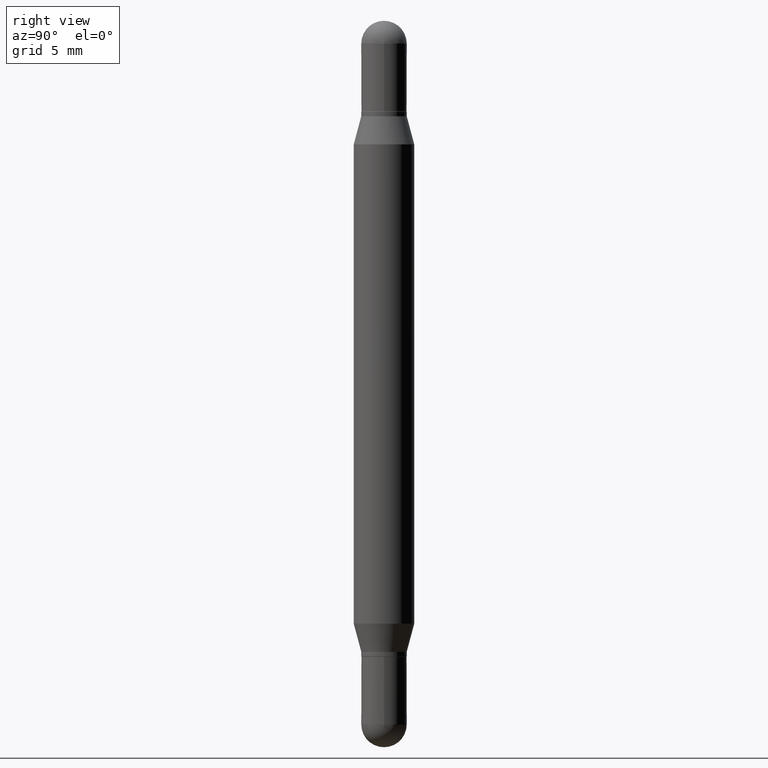
[diagram: clean part render]
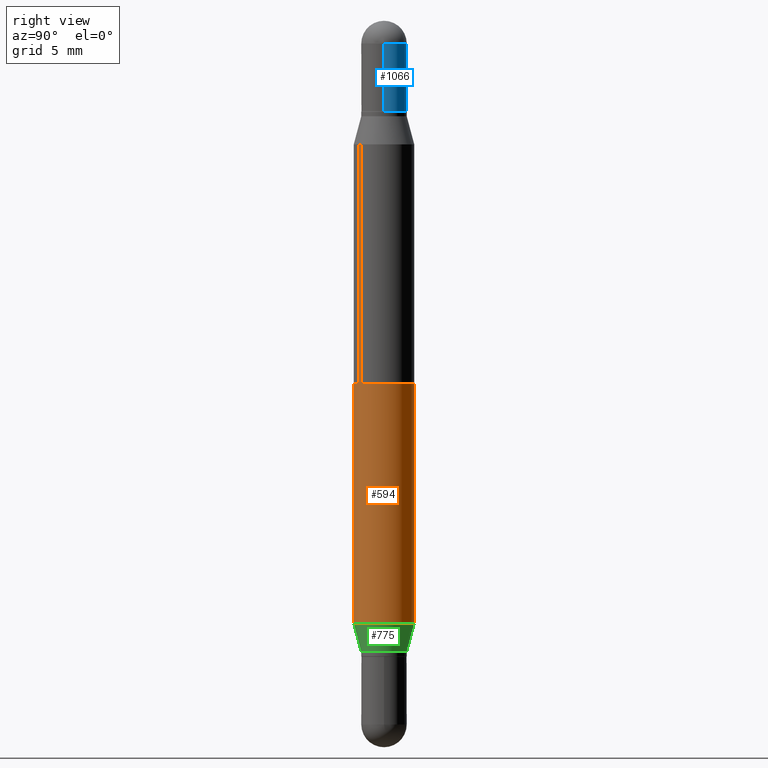
[diagram: same view with three faces highlighted in distinct colors, each labeled with its STEP entity id]
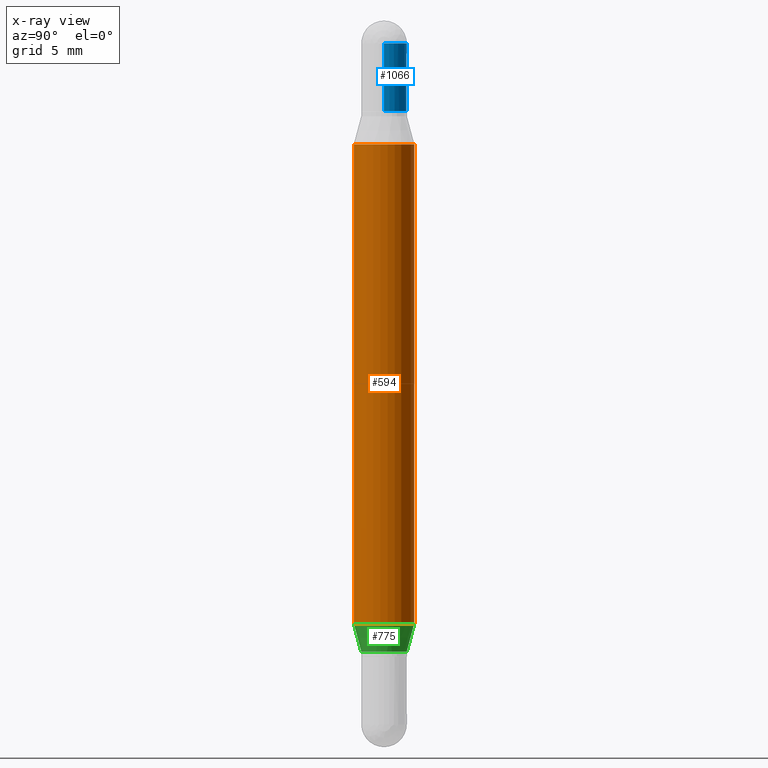
[diagram: x-ray of the same camera — body ghosted, the three highlighted faces saturated]
A machine part, right view with three faces highlighted in distinct colors.
The next image is the same camera in x-ray (body ghosted, the three faces saturated) — at least one of them is partly hidden behind the body in this view.
Their STEP definitions:

[orange] entity #594 — the highlighted cylindrical surface (edge-blend (fillet) strip) has radius 1.5875 mm, axis along (-0, -0, -1).
#9 = VECTOR ( 'NONE', #903, 39.37007874015748143 ) ;
#13 = EDGE_CURVE ( 'NONE', #1001, #980, #545, .T. ) ;
#32 = VERTEX_POINT ( 'NONE', #138 ) ;
#33 = DIRECTION ( 'NONE',  ( 2.445489716498267051E-29, 3.479644411736372261E-15, 1.000000000000000000 ) ) ;
#37 = DIRECTION ( 'NONE',  ( -2.445489716498267051E-29, 3.491451394084601576E-15, 1.000000000000000000 ) ) ;
#47 = LINE ( 'NONE', #373, #9 ) ;
#70 = LINE ( 'NONE', #159, #1105 ) ;
#76 = DIRECTION ( 'NONE',  ( -2.445489716498267051E-29, -3.479644411736372655E-15, -1.000000000000000000 ) ) ;
#91 = CIRCLE ( 'NONE', #600, 0.06250000000000000000 ) ;
#138 = CARTESIAN_POINT ( 'NONE',  ( 4.287811248607510938E-16, 0.06249999999999910488, -0.2552199925980757067 ) ) ;
#159 = CARTESIAN_POINT ( 'NONE',  ( 4.287811248607206733E-16, 0.06249999999999477501, -1.500000000000000666 ) ) ;
#216 = CARTESIAN_POINT ( 'NONE',  ( -4.364351673553611504E-16, -0.06250000000000434375, -1.244780007401924626 ) ) ;
#234 = CYLINDRICAL_SURFACE ( 'NONE', #702, 0.06250000000000000000 ) ;
#239 = DIRECTION ( 'NONE',  ( -2.445489716498267051E-29, -3.479644411736372261E-15, -1.000000000000000000 ) ) ;
#305 = EDGE_LOOP ( 'NONE', ( #463, #438, #797, #853 ) ) ;
#373 = CARTESIAN_POINT ( 'NONE',  ( -4.364351673553916201E-16, -0.06250000000000521805, -1.500000000000000222 ) ) ;
#378 = DIRECTION ( 'NONE',  ( -6.982962677686265922E-15, -1.000000000000000000, 3.278217592397115862E-15 ) ) ;
#390 = CARTESIAN_POINT ( 'NONE',  ( -4.364351673553612490E-16, -0.06250000000000090206, -0.2552199925980753181 ) ) ;
#397 = CARTESIAN_POINT ( 'NONE',  ( 3.044096707404043958E-29, -4.346088892172092005E-15, -1.244780007401924848 ) ) ;
#416 = CARTESIAN_POINT ( 'NONE',  ( 0.000000000000000000, -5.228321854365732350E-15, -1.500000000000000444 ) ) ;
#438 = ORIENTED_EDGE ( 'NONE', *, *, #1060, .F. ) ;
#463 = ORIENTED_EDGE ( 'NONE', *, *, #627, .F. ) ;
#474 = CARTESIAN_POINT ( 'NONE',  ( 4.287811248607390144E-16, 0.06249999999999565625, -1.244780007401925070 ) ) ;
#545 = CIRCLE ( 'NONE', #976, 0.06250000000000000000 ) ;
#583 = DIRECTION ( 'NONE',  ( -6.982962677686265922E-15, -1.000000000000000000, 4.370956789862821150E-15 ) ) ;
#594 = ADVANCED_FACE ( 'NONE', ( #1032 ), #234, .T. ) ;
#600 = AXIS2_PLACEMENT_3D ( 'NONE', #804, #33, #378 ) ;
#627 = EDGE_CURVE ( 'NONE', #32, #980, #70, .T. ) ;
#702 = AXIS2_PLACEMENT_3D ( 'NONE', #416, #239, #583 ) ;
#718 = DIRECTION ( 'NONE',  ( -6.982962677686265922E-15, -1.000000000000000000, 4.370956789862821150E-15 ) ) ;
#797 = ORIENTED_EDGE ( 'NONE', *, *, #993, .T. ) ;
#804 = CARTESIAN_POINT ( 'NONE',  ( 3.044096707404043958E-29, -8.969300577684643069E-16, -0.2552199925980755402 ) ) ;
#853 = ORIENTED_EDGE ( 'NONE', *, *, #13, .T. ) ;
#903 = DIRECTION ( 'NONE',  ( -2.445489716498267051E-29, -3.479644411736372655E-15, -1.000000000000000000 ) ) ;
#968 = VERTEX_POINT ( 'NONE', #390 ) ;
#976 = AXIS2_PLACEMENT_3D ( 'NONE', #397, #37, #718 ) ;
#980 = VERTEX_POINT ( 'NONE', #474 ) ;
#993 = EDGE_CURVE ( 'NONE', #968, #1001, #47, .T. ) ;
#1001 = VERTEX_POINT ( 'NONE', #216 ) ;
#1032 = FACE_OUTER_BOUND ( 'NONE', #305, .T. ) ;
#1060 = EDGE_CURVE ( 'NONE', #968, #32, #91, .T. ) ;
#1105 = VECTOR ( 'NONE', #76, 39.37007874015748143 ) ;

[blue] entity #1066 — the highlighted cylindrical surface (edge-blend (fillet) strip) has radius 1.1913 mm, axis along (-0, -0, -1).
#2 = AXIS2_PLACEMENT_3D ( 'NONE', #637, #552, #895 ) ;
#12 = ORIENTED_EDGE ( 'NONE', *, *, #937, .F. ) ;
#77 = EDGE_CURVE ( 'NONE', #1110, #490, #1101, .T. ) ;
#80 = VERTEX_POINT ( 'NONE', #235 ) ;
#101 = EDGE_CURVE ( 'NONE', #194, #1110, #1007, .T. ) ;
#108 = CIRCLE ( 'NONE', #559, 0.04689999999999999725 ) ;
#116 = CARTESIAN_POINT ( 'NONE',  ( 3.217573560955207797E-16, 0.04689999999999990010, -0.04690000000000069114 ) ) ;
#131 = DIRECTION ( 'NONE',  ( 2.445468806185136597E-29, 3.479614466977828254E-15, 1.000000000000000000 ) ) ;
#132 = AXIS2_PLACEMENT_3D ( 'NONE', #507, #848, #1012 ) ;
#136 = DIRECTION ( 'NONE',  ( 1.000000000000000000, -6.982962677686266711E-15, 0.000000000000000000 ) ) ;
#145 = CIRCLE ( 'NONE', #132, 0.04689999999999999725 ) ;
#154 = DIRECTION ( 'NONE',  ( -2.445468806185136877E-29, -3.479614466977828648E-15, -1.000000000000000000 ) ) ;
#161 = EDGE_CURVE ( 'NONE', #194, #324, #145, .T. ) ;
#194 = VERTEX_POINT ( 'NONE', #877 ) ;
#212 = CARTESIAN_POINT ( 'NONE',  ( 3.553510722267622201E-29, -1.720940724002502970E-16, -0.04690000000000053154 ) ) ;
#218 = ORIENTED_EDGE ( 'NONE', *, *, #77, .T. ) ;
#235 = CARTESIAN_POINT ( 'NONE',  ( -0.04689999999999999725, -9.408370971656128076E-17, -0.04690000000000053154 ) ) ;
#269 = ORIENTED_EDGE ( 'NONE', *, *, #101, .T. ) ;
#290 = LINE ( 'NONE', #983, #584 ) ;
#324 = VERTEX_POINT ( 'NONE', #116 ) ;
#343 = DIRECTION ( 'NONE',  ( 1.000000000000000000, -6.982962677686266711E-15, 0.000000000000000000 ) ) ;
#490 = VERTEX_POINT ( 'NONE', #812 ) ;
#507 = CARTESIAN_POINT ( 'NONE',  ( 3.553510722267622201E-29, -1.720940724002502970E-16, -0.04690000000000053154 ) ) ;
#513 = CARTESIAN_POINT ( 'NONE',  ( 0.04689999999999999725, -5.555822803949218252E-15, -1.500000000000000444 ) ) ;
#547 = DIRECTION ( 'NONE',  ( -2.445468806185136877E-29, -3.479614466977828648E-15, -1.000000000000000000 ) ) ;
#552 = DIRECTION ( 'NONE',  ( -2.445468806185136597E-29, -3.479614466977828254E-15, -1.000000000000000000 ) ) ;
#559 = AXIS2_PLACEMENT_3D ( 'NONE', #212, #131, #136 ) ;
#562 = VECTOR ( 'NONE', #154, 39.37007874015748143 ) ;
#584 = VECTOR ( 'NONE', #547, 39.37007874015748143 ) ;
#588 = CARTESIAN_POINT ( 'NONE',  ( 0.04689999999999999725, -9.870890088073285070E-16, -0.1870000000000002216 ) ) ;
#636 = ORIENTED_EDGE ( 'NONE', *, *, #161, .F. ) ;
#637 = CARTESIAN_POINT ( 'NONE',  ( 0.000000000000000000, -5.228321854365732350E-15, -1.500000000000000444 ) ) ;
#713 = FACE_OUTER_BOUND ( 'NONE', #1027, .T. ) ;
#812 = CARTESIAN_POINT ( 'NONE',  ( -0.04689999999999999725, -9.408370971656158891E-17, -0.1870000000000002216 ) ) ;
#842 = CARTESIAN_POINT ( 'NONE',  ( 3.210900542521084585E-29, -6.595880592238425060E-16, -0.1870000000000002216 ) ) ;
#848 = DIRECTION ( 'NONE',  ( 2.445468806185136597E-29, 3.479614466977828254E-15, 1.000000000000000000 ) ) ;
#877 = CARTESIAN_POINT ( 'NONE',  ( 0.04689999999999999725, -7.433420153955320943E-16, -0.04690000000000053154 ) ) ;
#895 = DIRECTION ( 'NONE',  ( 1.000000000000000000, -6.982962677686277755E-15, 0.000000000000000000 ) ) ;
#937 = EDGE_CURVE ( 'NONE', #80, #490, #290, .T. ) ;
#983 = CARTESIAN_POINT ( 'NONE',  ( -0.04689999999999999725, -4.906564498270247118E-15, -1.500000000000000444 ) ) ;
#1007 = LINE ( 'NONE', #513, #562 ) ;
#1012 = DIRECTION ( 'NONE',  ( 1.000000000000000000, -6.982962677686266711E-15, 0.000000000000000000 ) ) ;
#1019 = EDGE_CURVE ( 'NONE', #324, #80, #108, .T. ) ;
#1027 = EDGE_LOOP ( 'NONE', ( #12, #1045, #636, #269, #218 ) ) ;
#1045 = ORIENTED_EDGE ( 'NONE', *, *, #1019, .F. ) ;
#1063 = CYLINDRICAL_SURFACE ( 'NONE', #2, 0.04689999999999999725 ) ;
#1064 = AXIS2_PLACEMENT_3D ( 'NONE', #842, #1100, #343 ) ;
#1066 = ADVANCED_FACE ( 'NONE', ( #713 ), #1063, .T. ) ;
#1100 = DIRECTION ( 'NONE',  ( 2.445468806185136597E-29, 3.479614466977828254E-15, 1.000000000000000000 ) ) ;
#1101 = CIRCLE ( 'NONE', #1064, 0.04689999999999999725 ) ;
#1110 = VERTEX_POINT ( 'NONE', #588 ) ;

[green] entity #775 — the highlighted conical surface has half-angle 15 deg.
#13 = EDGE_CURVE ( 'NONE', #1001, #980, #545, .T. ) ;
#18 = CARTESIAN_POINT ( 'NONE',  ( 3.186473100597242815E-29, -4.549361166492237706E-15, -1.303000000000000380 ) ) ;
#25 = EDGE_CURVE ( 'NONE', #339, #533, #996, .T. ) ;
#37 = DIRECTION ( 'NONE',  ( -2.445489716498267051E-29, 3.491451394084601576E-15, 1.000000000000000000 ) ) ;
#65 = LINE ( 'NONE', #511, #149 ) ;
#149 = VECTOR ( 'NONE', #501, 39.37007874015748143 ) ;
#183 = FACE_OUTER_BOUND ( 'NONE', #210, .T. ) ;
#186 = AXIS2_PLACEMENT_3D ( 'NONE', #568, #906, #1070 ) ;
#210 = EDGE_LOOP ( 'NONE', ( #649, #451, #935, #549 ) ) ;
#216 = CARTESIAN_POINT ( 'NONE',  ( -4.364351673553611504E-16, -0.06250000000000434375, -1.244780007401924626 ) ) ;
#226 = EDGE_CURVE ( 'NONE', #533, #980, #618, .T. ) ;
#339 = VERTEX_POINT ( 'NONE', #971 ) ;
#397 = CARTESIAN_POINT ( 'NONE',  ( 3.044096707404043958E-29, -4.346088892172092005E-15, -1.244780007401924848 ) ) ;
#451 = ORIENTED_EDGE ( 'NONE', *, *, #226, .T. ) ;
#474 = CARTESIAN_POINT ( 'NONE',  ( 4.287811248607390144E-16, 0.06249999999999565625, -1.244780007401925070 ) ) ;
#501 = DIRECTION ( 'NONE',  ( -1.807323732225336450E-15, -0.2588190451025190741, 0.9659258262890687563 ) ) ;
#511 = CARTESIAN_POINT ( 'NONE',  ( -3.275009495834514884E-16, -0.04690000000000419528, -1.302999999999999936 ) ) ;
#527 = EDGE_CURVE ( 'NONE', #339, #1001, #65, .T. ) ;
#528 = DIRECTION ( 'NONE',  ( 1.839019923739606626E-15, 0.2588190451025258465, 0.9659258262890669799 ) ) ;
#533 = VERTEX_POINT ( 'NONE', #854 ) ;
#545 = CIRCLE ( 'NONE', #976, 0.06250000000000000000 ) ;
#548 = AXIS2_PLACEMENT_3D ( 'NONE', #18, #1046, #790 ) ;
#549 = ORIENTED_EDGE ( 'NONE', *, *, #527, .F. ) ;
#568 = CARTESIAN_POINT ( 'NONE',  ( 3.186473100597242815E-29, -4.549361166492237706E-15, -1.303000000000000380 ) ) ;
#618 = LINE ( 'NONE', #802, #917 ) ;
#649 = ORIENTED_EDGE ( 'NONE', *, *, #25, .T. ) ;
#718 = DIRECTION ( 'NONE',  ( -6.982962677686265922E-15, -1.000000000000000000, 4.370956789862821150E-15 ) ) ;
#775 = ADVANCED_FACE ( 'NONE', ( #183 ), #888, .T. ) ;
#790 = DIRECTION ( 'NONE',  ( -6.982962677686265133E-15, -1.000000000000000000, 5.824835807386533174E-15 ) ) ;
#802 = CARTESIAN_POINT ( 'NONE',  ( 3.332445430715162048E-16, 0.04689999999999509145, -1.303000000000000602 ) ) ;
#854 = CARTESIAN_POINT ( 'NONE',  ( 3.332445430715164513E-16, 0.04689999999999509145, -1.303000000000000602 ) ) ;
#888 = CONICAL_SURFACE ( 'NONE', #548, 0.04689999999999964336, 0.2617993877991511842 ) ;
#906 = DIRECTION ( 'NONE',  ( -2.445489716498267051E-29, 3.491451394084601576E-15, 1.000000000000000000 ) ) ;
#917 = VECTOR ( 'NONE', #528, 39.37007874015748143 ) ;
#935 = ORIENTED_EDGE ( 'NONE', *, *, #13, .F. ) ;
#971 = CARTESIAN_POINT ( 'NONE',  ( -3.275009495834514884E-16, -0.04690000000000419528, -1.302999999999999936 ) ) ;
#976 = AXIS2_PLACEMENT_3D ( 'NONE', #397, #37, #718 ) ;
#980 = VERTEX_POINT ( 'NONE', #474 ) ;
#996 = CIRCLE ( 'NONE', #186, 0.04689999999999964336 ) ;
#1001 = VERTEX_POINT ( 'NONE', #216 ) ;
#1046 = DIRECTION ( 'NONE',  ( -2.445489716498267051E-29, 3.491451394084601576E-15, 1.000000000000000000 ) ) ;
#1070 = DIRECTION ( 'NONE',  ( -6.982962677686265133E-15, -1.000000000000000000, 5.824835807386533174E-15 ) ) ;